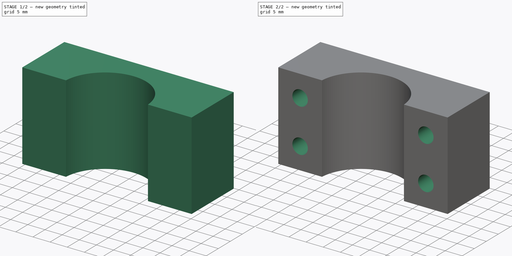
[diagram: build sequence overview — one tinted view per stage of 2, left to right]
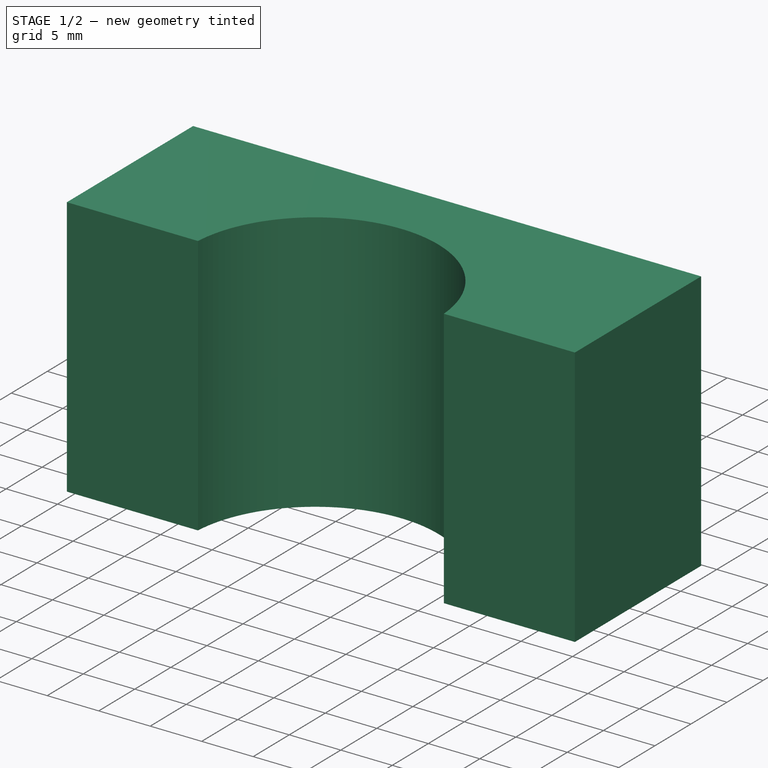
[diagram: stage 1 of 2 — iso view after this stage's code; geometry added in this stage tinted green]
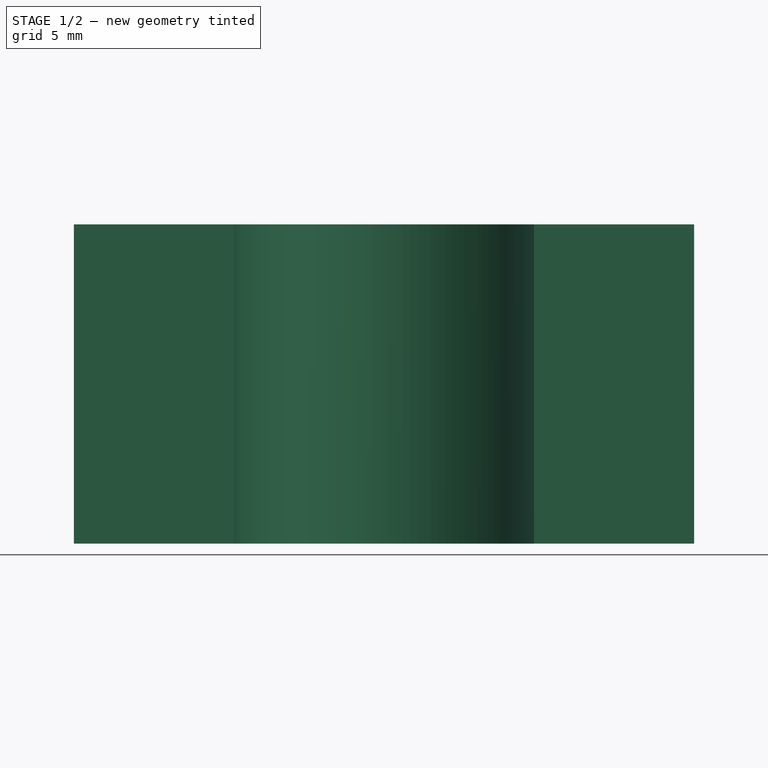
[diagram: stage 1 of 2 — front view after this stage's code; geometry added in this stage tinted green]
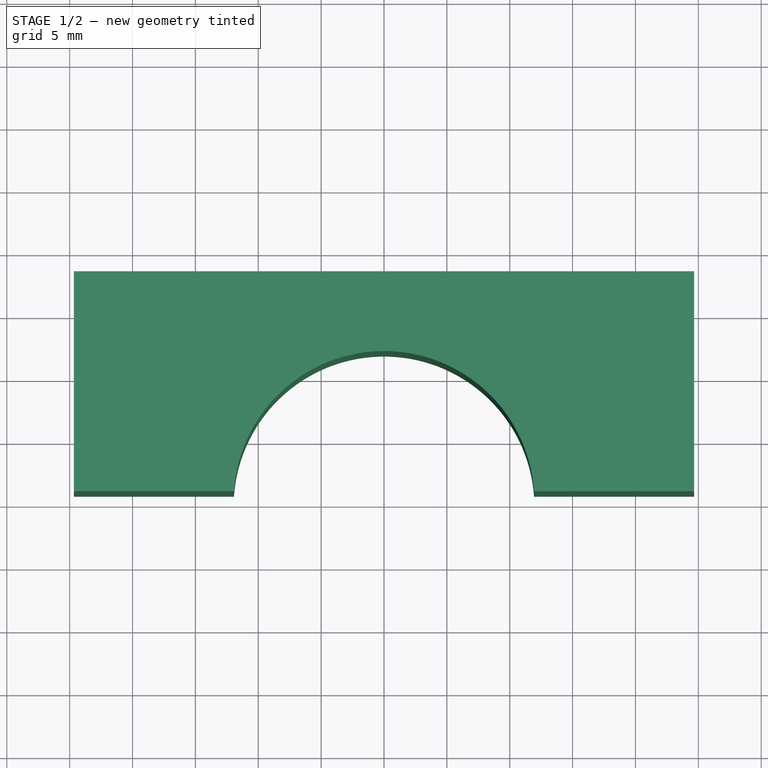
[diagram: stage 1 of 2 — top view after this stage's code; geometry added in this stage tinted green]
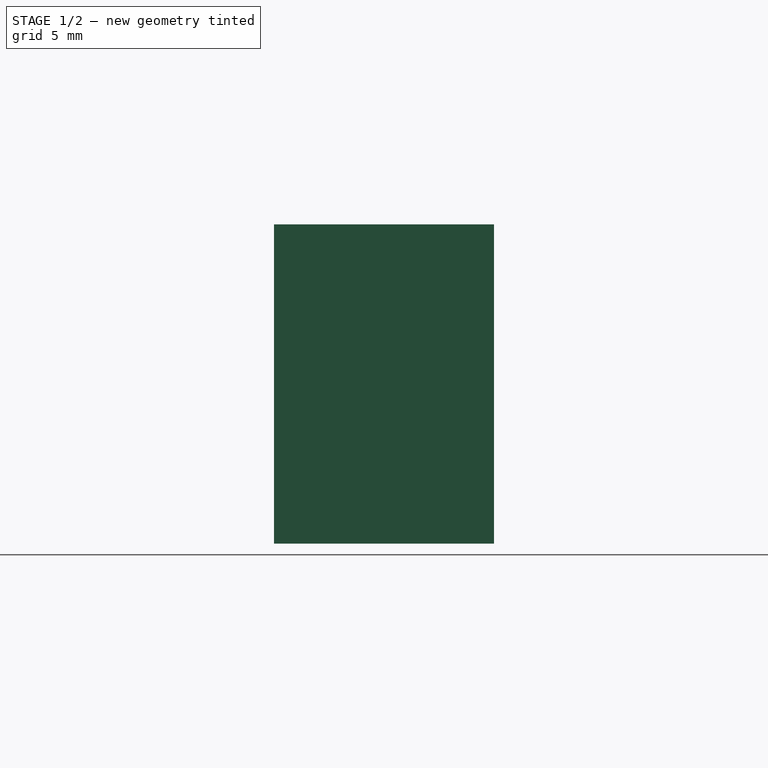
[diagram: stage 1 of 2 — right view after this stage's code; geometry added in this stage tinted green]
FCSTD DOCUMENT  (FreeCAD 0.15R4671 (Git))
Label: motor_mount_d
License: All rights reserved
LicenseURL: http://en.wikipedia.org/wiki/All_rights_reserved
objects: Sketcher::SketchObject×2, PartDesign::Pad×1, PartDesign::Pocket×1
note: 6 computed .brp shape members not serialized (recipe doc carries the construction recipe); baked Part::Feature solids carry a one-line shape summary decoded from their .brp

FEATURE [Sketcher::SketchObject] Sketch
  sketch-geometry (7):
    g0: ArcOfCircle CenterX=0 CenterY=0 CenterZ=0 NormalX=0 NormalY=0 NormalZ=1 Radius=11.9634 StartAngle=0.0679929 EndAngle=3.0736
    g1: LineSegment [constr] StartX=0 StartY=11.9634 StartZ=0 EndX=0 EndY=0 EndZ=0
    g2: LineSegment StartX=-24.6634 StartY=0.8128 StartZ=0 EndX=-11.9358 EndY=0.8128 EndZ=0
    g3: LineSegment StartX=-24.6634 StartY=18.3134 StartZ=0 EndX=24.6634 EndY=18.3134 EndZ=0
    g4: LineSegment StartX=24.6634 StartY=18.3134 StartZ=0 EndX=24.6634 EndY=0.8128 EndZ=0
    g5: LineSegment StartX=-24.6634 StartY=18.3134 StartZ=0 EndX=-24.6634 EndY=0.8128 EndZ=0
    g6: LineSegment StartX=11.9358 StartY=0.8128 StartZ=0 EndX=24.6634 EndY=0.8128 EndZ=0
  constraints (21):
    c: Coincident(g0,g-1)
    c: Vertical(g1)
    c: DistanceY(g1) = -11.9634
    c: Coincident(g1,g-1)
    c: Horizontal(g2)
    c: Horizontal(g3)
    c: Coincident(g4,g3)
    c: Coincident(g4,g6)
    c: Vertical(g4)
    c: Coincident(g5,g3)
    c: Coincident(g5,g2)
    c: Vertical(g5)
    c: Coincident(g6,g0)
    c: Tangent(g2,g6)
    c: Coincident(g2,g0)
    c: Equal(g6,g2)
    c: DistanceX(g6) = 12.7276
    c: DistanceX(g3) = 49.3268
    c: DistanceY(g4) = -17.5006
    c: Equal(g4,g5)
    c: DistanceY(g-1,g0) = 0.8128
FEATURE [PartDesign::Pad] Pad
  Length = 25.4
  Length2 = 100
  Sketch = -> Sketch
  Type = 0
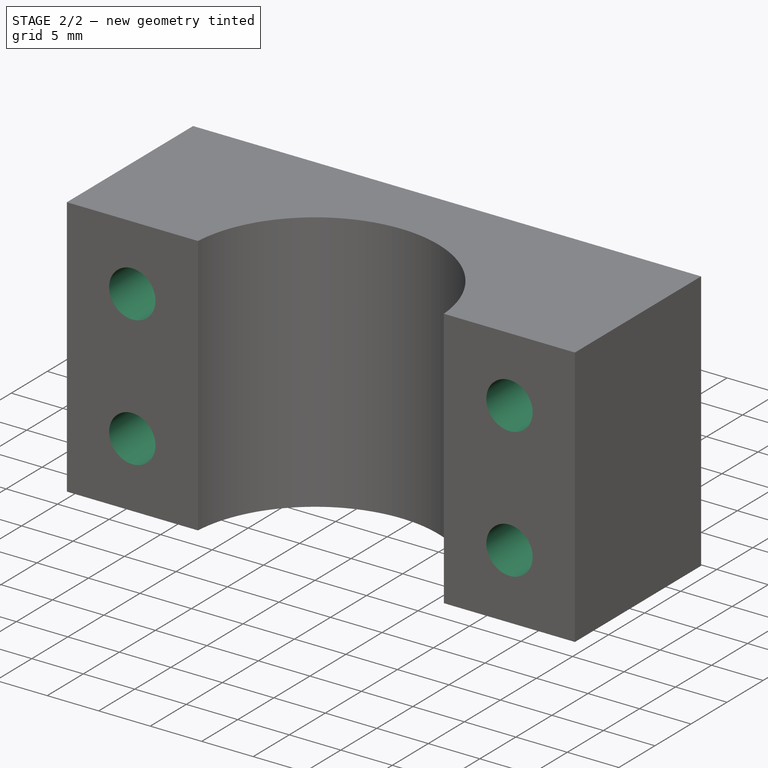
[diagram: stage 2 of 2 — iso view after this stage's code; geometry added in this stage tinted green]
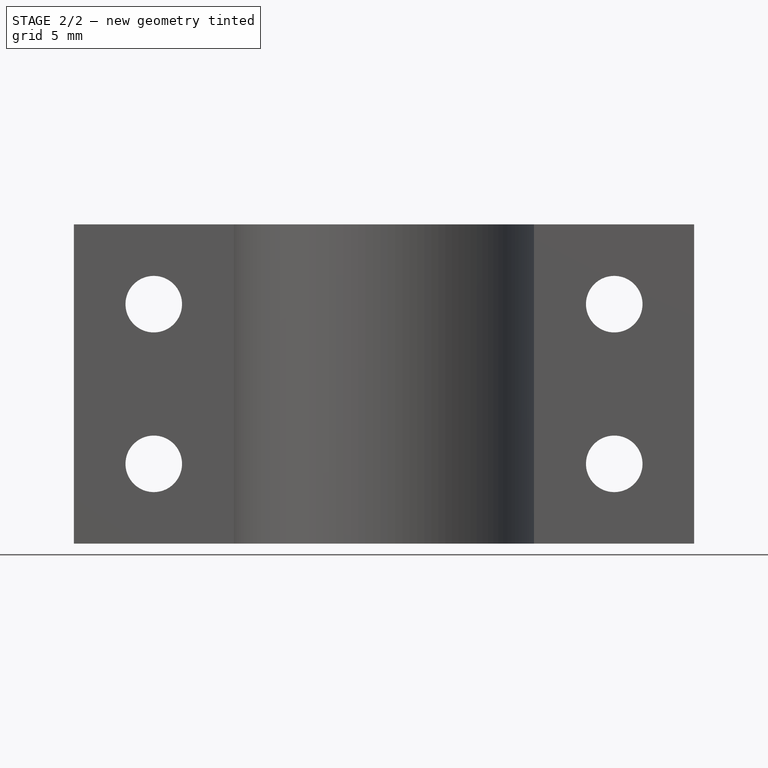
[diagram: stage 2 of 2 — front view after this stage's code; geometry added in this stage tinted green]
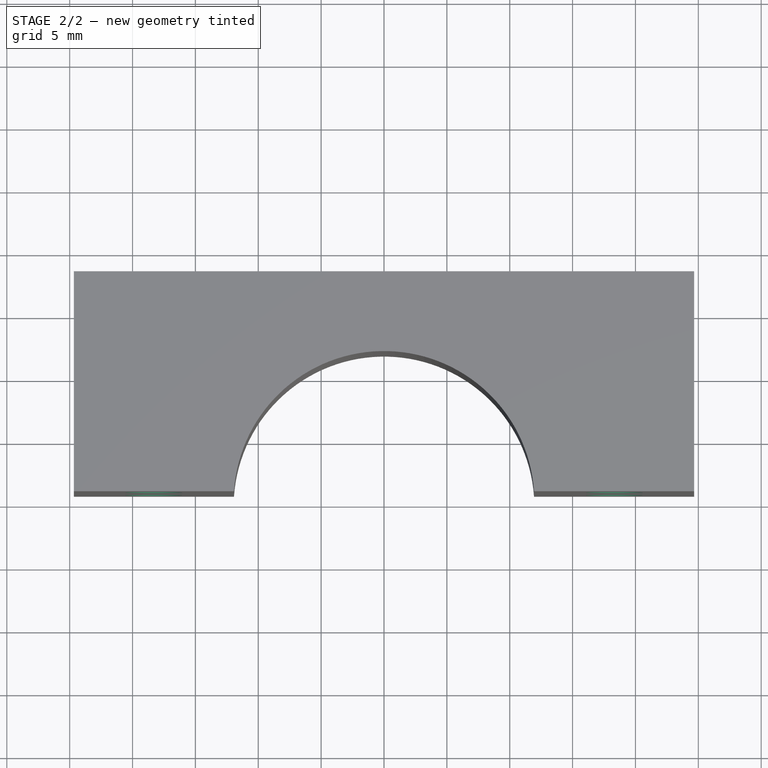
[diagram: stage 2 of 2 — top view after this stage's code; geometry added in this stage tinted green]
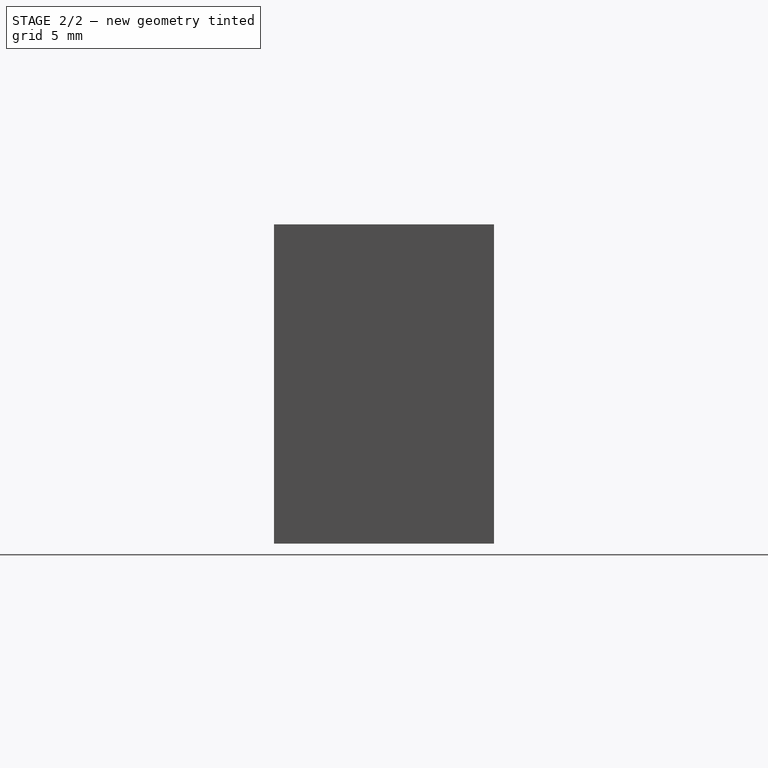
[diagram: stage 2 of 2 — right view after this stage's code; geometry added in this stage tinted green]
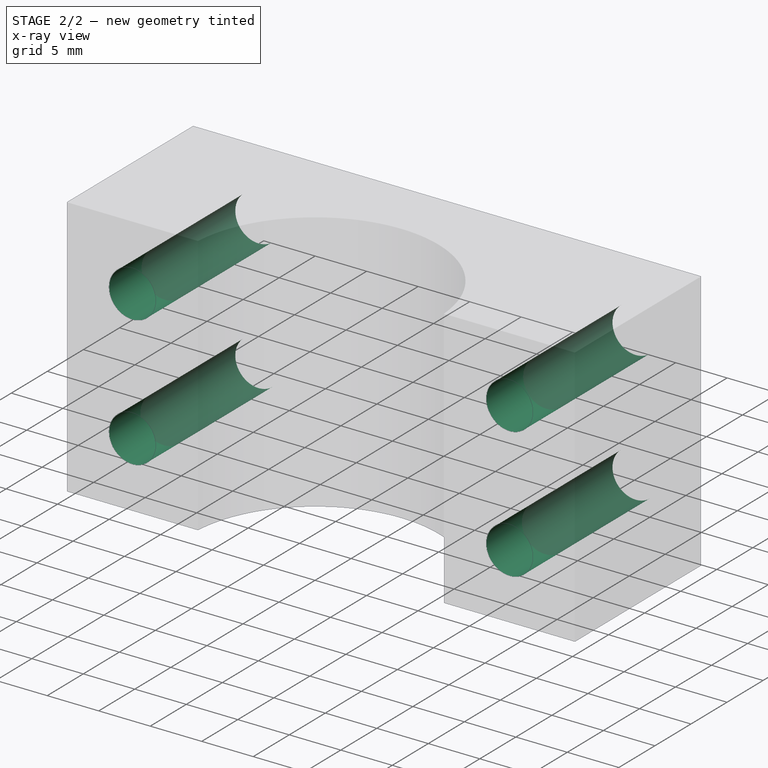
[diagram: stage 2 of 2 — x-ray composite at the iso view; earlier geometry ghosted, this stage's added geometry solid]
FEATURE [Sketcher::SketchObject] Sketch001
  ExternalGeometry = -> [Pad]
  Placement = pos=(0,18.3134,0) rot=(0,0.707107,0.707107;3.14159rad)
  Support = -> Pad [Face4]
  sketch-geometry (4):
    g0: Circle CenterX=18.3134 CenterY=6.35 CenterZ=0 NormalX=0 NormalY=0 NormalZ=1 Radius=2.24815
    g1: Circle CenterX=18.3134 CenterY=19.05 CenterZ=0 NormalX=0 NormalY=0 NormalZ=1 Radius=2.24815
    g2: Circle CenterX=-18.3134 CenterY=19.05 CenterZ=0 NormalX=0 NormalY=0 NormalZ=1 Radius=2.24815
    g3: Circle CenterX=-18.3134 CenterY=6.35 CenterZ=0 NormalX=0 NormalY=0 NormalZ=1 Radius=2.24815
  constraints (12):
    c: Equal(g1,g0)
    c: DistanceX(g1,g-6) = 6.35
    c: DistanceX(g0,g-5) = 6.35
    c: DistanceX(g3,g-5) = -6.35
    c: DistanceX(g2,g-6) = -6.35
    c: DistanceY(g2,g-5) = 6.35
    c: DistanceY(g1,g-5) = 6.35
    c: DistanceY(g3,g-6) = -6.35
    c: DistanceY(g0,g-6) = -6.35
    c: Radius(g2) = 2.24815
    c: Equal(g2,g3)
    c: Equal(g2,g1)
FEATURE [PartDesign::Pocket] Pocket
  Length = 4.99999
  Sketch = -> Sketch001
  Type = 1
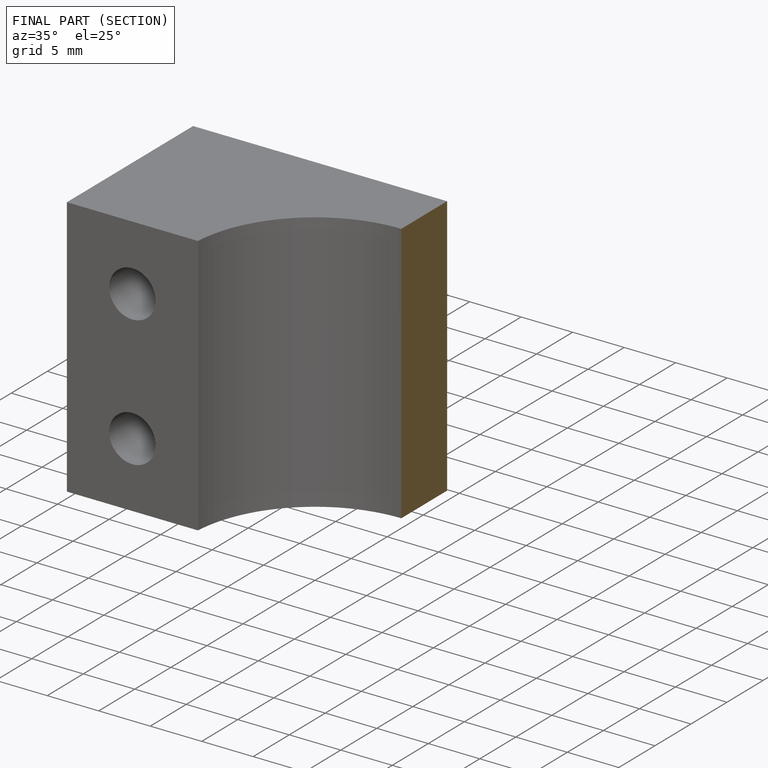
[diagram: finished part — half-section view (interior)]
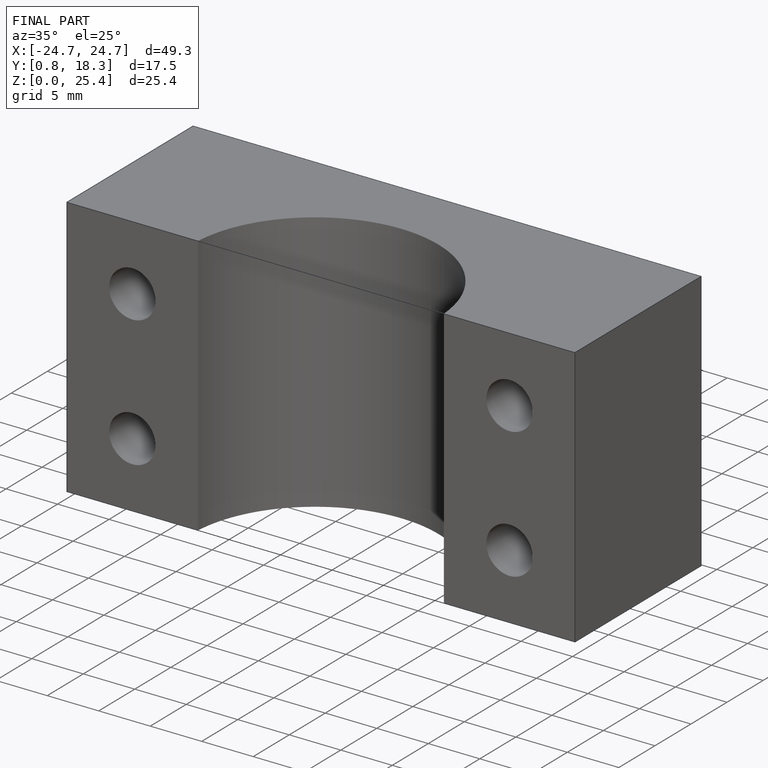
[diagram: finished part — iso view with bounding-box wireframe]
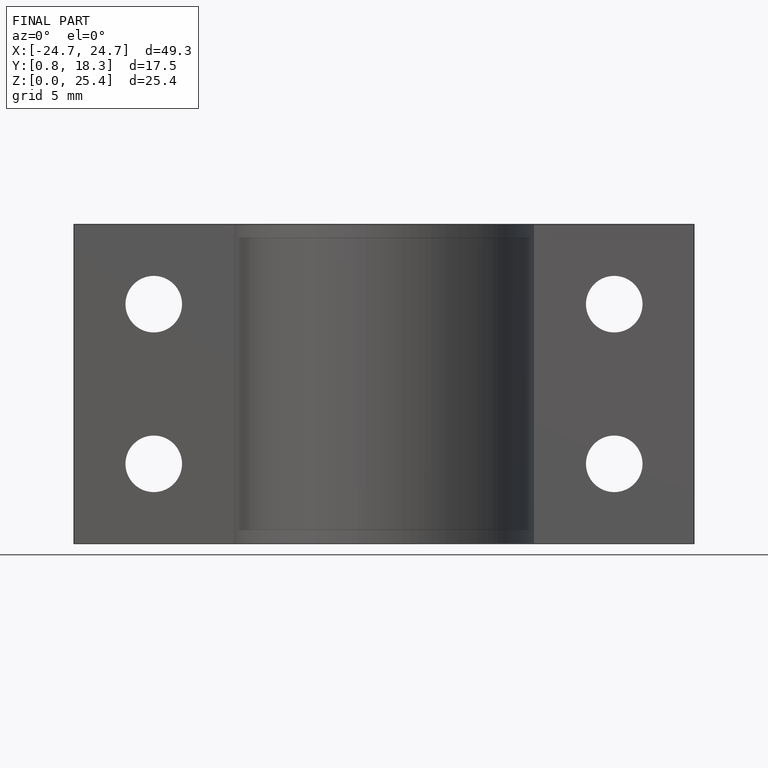
[diagram: finished part — front view with bounding-box wireframe]
